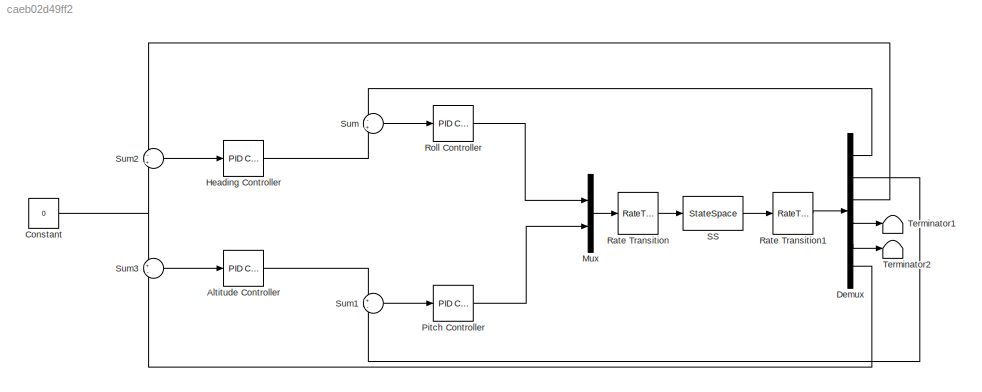
MODEL slx_caeb02d49ff2
KIND model
CONFIG AbsTol = auto
CONFIG EnableMultiTasking = off
CONFIG FixedStep = auto
CONFIG MaxStep = auto
CONFIG MinStep = auto
CONFIG RelTol = 1e-3
CONFIG SampleTimeConstraint = Unconstrained
CONFIG Solver = VariableStepAuto
CONFIG SolverName = VariableStepAuto
CONFIG StartTime = 0.0
CONFIG StopTime = 10.0
BLOCK [Reference] Altitude Controller  REF=simulink/Continuous/PID Controller
  Ports = [1, 1]
  SourceBlock = simulink/Continuous/PID Controller
  SourceProductBaseCode = SL
  SourceProductName = Simulink
  SourceType = PID 1dof
BLOCK [Constant] Constant
  Value = 0
BLOCK [Demux] Demux
  DisplayOption = bar
  Outputs = 6
  Ports = [1, 6]
BLOCK [Reference] Heading Controller  REF=simulink/Continuous/PID Controller
  Ports = [1, 1]
  SourceBlock = simulink/Continuous/PID Controller
  SourceProductBaseCode = SL
  SourceProductName = Simulink
  SourceType = PID 1dof
BLOCK [Mux] Mux
  DisplayOption = bar
  Inputs = 2
  Ports = [2, 1]
BLOCK [Reference] Pitch Controller  REF=simulink/Continuous/PID Controller
  Ports = [1, 1]
  SourceBlock = simulink/Continuous/PID Controller
  SourceProductBaseCode = SL
  SourceProductName = Simulink
  SourceType = PID 1dof
BLOCK [RateTransition] Rate Transition
BLOCK [RateTransition] Rate Transition1
BLOCK [Reference] Roll Controller  REF=simulink/Continuous/PID Controller
  Ports = [1, 1]
  SourceBlock = simulink/Continuous/PID Controller
  SourceProductBaseCode = SL
  SourceProductName = Simulink
  SourceType = PID 1dof
BLOCK [StateSpace] SS
  A = [0,0,0,0.500000000000000,0,0,0,0,0,0,0,0,0;0,0,0,0,0.500000000000000,0,0,0,0,0,0,0,0;0,0,0,0,0,0.500000000000000,0,0,0,0,0,0,0;0,0.319001742497906,-88.6513808196429,-38.2974785140518,-0.0161447893787196,4.17625042026672,0.000127102860209276,-2.95504602732143,-0.0106333914165969,0,0,0,-0.0106914734562848;0,105.289209513350,-0.151452150316390,-0.0656316633546494,-5.32872359296307,0.00643339588770734...<+728ch>
  B = [0,0;0,0;0,0;2.90943220014284,-0.00211287819209380;0.00495613180511621,-0.697373227185470;-0.0807335669860118,-0.000198573032592360;0,-0.00262494527515244;0,0;0,-0.0593019512195122;0,0;0,0;0,0;0,0]
  C = [0,0,0,0,0,0,0,0,0,1,0,0,0;0,0,0,0,0,0,0,0,0,0,1,0,0;0,0,0,0,0,0,0,0,0,0,0,1,0;1.99999999993333,0,0,0,0,0,0,0,0,0,0,0,0;0,2.00000000003333,0,0,0,0,0,0,0,0,0,0,0;0,0,1.99999999993333,0,0,0,0,0,0,0,0,0,0]
  D = [0,0;0,0;0,0;0,0;0,0;0,0]
  InitialCondition = 0
  Ports = [1, 1]
BLOCK [Sum] Sum
  IconShape = round
  InputSameDT = off
  Inputs = -+
  OutDataTypeStr = Inherit: Inherit via internal rule
  Ports = [2, 1]
  SaturateOnIntegerOverflow = off
BLOCK [Sum] Sum1
  IconShape = round
  InputSameDT = off
  Inputs = +-
  OutDataTypeStr = Inherit: Inherit via internal rule
  Ports = [2, 1]
  SaturateOnIntegerOverflow = off
BLOCK [Sum] Sum2
  IconShape = round
  InputSameDT = off
  Inputs = -+
  OutDataTypeStr = Inherit: Inherit via internal rule
  Ports = [2, 1]
  SaturateOnIntegerOverflow = off
BLOCK [Sum] Sum3
  IconShape = round
  InputSameDT = off
  Inputs = +-
  OutDataTypeStr = Inherit: Inherit via internal rule
  Ports = [2, 1]
  SaturateOnIntegerOverflow = off
BLOCK [Terminator] Terminator1
BLOCK [Terminator] Terminator2
LINE Altitude Controller:1 -> Sum1:1
NET Constant:1 -> Sum2:2, Sum3:1
LINE Demux:1 -> Sum:1
LINE Demux:2 -> Sum1:2
LINE Demux:3 -> Sum2:1
LINE Demux:4 -> Terminator1:1
LINE Demux:5 -> Terminator2:1
LINE Demux:6 -> Sum3:2
LINE Heading Controller:1 -> Sum:2
LINE Mux:1 -> Rate Transition:1
LINE Pitch Controller:1 -> Mux:2
LINE Rate Transition1:1 -> Demux:1
LINE Rate Transition:1 -> SS:1
LINE Roll Controller:1 -> Mux:1
LINE SS:1 -> Rate Transition1:1
LINE Sum1:1 -> Pitch Controller:1
LINE Sum2:1 -> Heading Controller:1
LINE Sum3:1 -> Altitude Controller:1
LINE Sum:1 -> Roll Controller:1
note: NET lines group one-source signal fan-out (src -> all destinations, sorted); 1:1 wires keep LINE
